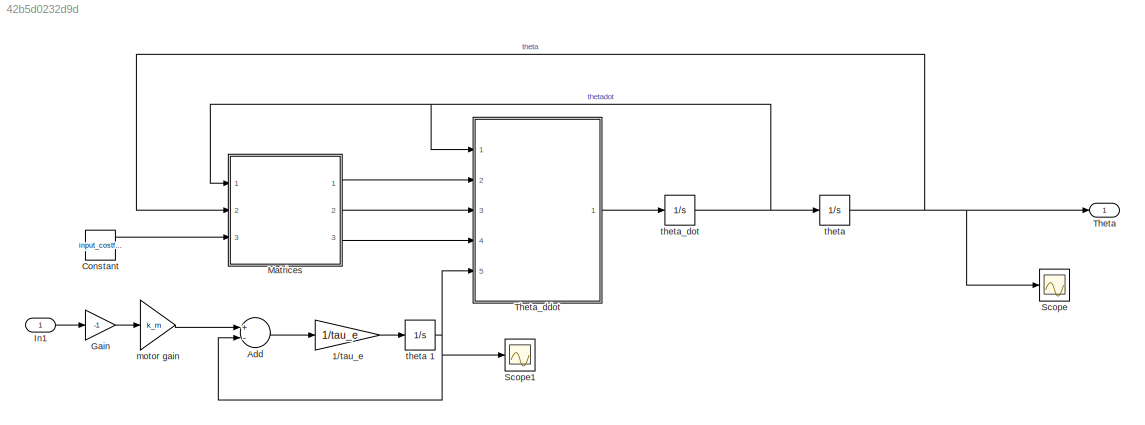
MODEL slx_42b5d0232d9d
KIND model
CONFIG AbsTol = auto
CONFIG FixedStep = auto
CONFIG MaxStep = auto
CONFIG MinStep = auto
CONFIG RelTol = 1e-3
CONFIG SampleTimeConstraint = Unconstrained
CONFIG Solver = ode45
CONFIG SolverMode = Auto
CONFIG SolverName = ode45
CONFIG StartTime = 0.0
CONFIG StopTime = 30
WORKSPACE source: external: MATLAB File  (data not in archive)
BLOCK [Gain] 1//tau_e 
  Gain = 1/tau_e
  OutDataTypeStr = Inherit: Inherit via internal rule
  ParamDataTypeStr = Inherit: Inherit via internal rule
  SaturateOnIntegerOverflow = off
BLOCK [Sum] Add
  InputSameDT = off
  Inputs = +-
  OutDataTypeStr = Inherit: Inherit via internal rule
  Ports = [2, 1]
  SaturateOnIntegerOverflow = off
BLOCK [Constant] Constant
  SampleTime = -1
  Value = input_costfun
BLOCK [Gain] Gain
  Gain = -1
  OutDataTypeStr = Inherit: Inherit via internal rule
  ParamDataTypeStr = Inherit: Inherit via internal rule
  SaturateOnIntegerOverflow = off
BLOCK [Inport] In1
  IconDisplay = Port number
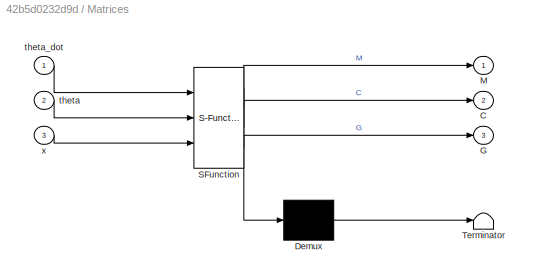
BLOCK [SubSystem] Matrices
  ErrorFcn = Stateflow.Translate.translate
  PermitHierarchicalResolution = ExplicitOnly
  Ports = [3, 3]
  RequestExecContextInheritance = off
  SFBlockType = MATLAB Function
  TreatAsAtomicUnit = on
  Variant = off
BLOCK [Demux] Matrices/ Demux 
  Outputs = 1
  Ports = [1, 1]
BLOCK [S-Function] Matrices/ SFunction 
  EnableBusSupport = on
  FunctionName = sf_sfun
  PortCounts = [3 4]
  Ports = [3, 4]
  SFunctionDeploymentMode = off
  Tag = Stateflow S-Function Pendulum_nlmodel_link2 2
BLOCK [Terminator] Matrices/ Terminator 
BLOCK [Outport] Matrices/C
  IconDisplay = Port number
  Port = 2
BLOCK [Outport] Matrices/G
  IconDisplay = Port number
  Port = 3
BLOCK [Outport] Matrices/M
  IconDisplay = Port number
BLOCK [Inport] Matrices/theta
  IconDisplay = Port number
  Port = 2
BLOCK [Inport] Matrices/theta_dot
  IconDisplay = Port number
BLOCK [Inport] Matrices/x
  IconDisplay = Port number
  Port = 3
BLOCK [Scope] Scope
  Ports = [1]
  ScopeSpecificationString = Simulink.scopes.TimeScopeBlockCfg('CurrentConfiguration', extmgr.ConfigurationSet(extmgr.Configuration('Core','General UI',true),extmgr.Configuration('Core','Source UI',true),extmgr.Configuration('Sources','WiredSimulink',true,'DataLoggingVariableName','ScopeData1'),extmgr.Configuration('Visuals','Time Domain',true,'SerializedDisplays',{struct('MinYLimReal','-0.20082','MaxYLimReal','1.80738','YLab...<+1430ch>
BLOCK [Scope] Scope1
  Ports = [1]
  ScopeSpecificationString = C++SS(StrPVP('SaveName','ScopeData1'),StrPVP('LimitDataPoints','on'),StrPVP('DataFormat','Array'),StrPVP('Decimation','1'),StrPVP('BlockParamSampleInput','off'))
BLOCK [Outport] Theta
  IconDisplay = Port number
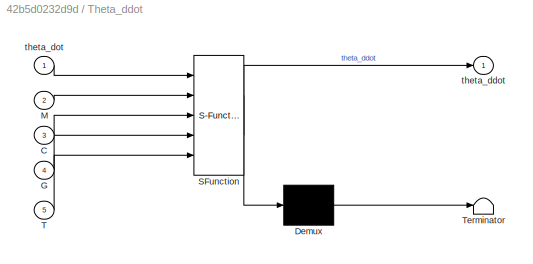
BLOCK [SubSystem] Theta_ddot 
  ErrorFcn = Stateflow.Translate.translate
  PermitHierarchicalResolution = ExplicitOnly
  Ports = [5, 1]
  RequestExecContextInheritance = off
  SFBlockType = MATLAB Function
  TreatAsAtomicUnit = on
  Variant = off
BLOCK [Demux] Theta_ddot / Demux 
  Outputs = 1
  Ports = [1, 1]
BLOCK [S-Function] Theta_ddot / SFunction 
  EnableBusSupport = on
  FunctionName = sf_sfun
  PortCounts = [5 2]
  Ports = [5, 2]
  SFunctionDeploymentMode = off
  Tag = Stateflow S-Function Pendulum_nlmodel_link2 1
BLOCK [Terminator] Theta_ddot / Terminator 
BLOCK [Inport] Theta_ddot /C
  IconDisplay = Port number
  Port = 3
BLOCK [Inport] Theta_ddot /G
  IconDisplay = Port number
  Port = 4
BLOCK [Inport] Theta_ddot /M
  IconDisplay = Port number
  Port = 2
BLOCK [Inport] Theta_ddot /T
  IconDisplay = Port number
  Port = 5
BLOCK [Outport] Theta_ddot /theta_ddot
  IconDisplay = Port number
BLOCK [Inport] Theta_ddot /theta_dot
  IconDisplay = Port number
BLOCK [Gain] motor gain 
  Gain = k_m
  OutDataTypeStr = Inherit: Inherit via internal rule
  ParamDataTypeStr = Inherit: Inherit via internal rule
  SaturateOnIntegerOverflow = off
BLOCK [Integrator] theta 
  InitialCondition = [x0(1) x0(2)]
  Ports = [1, 1]
BLOCK [Integrator] theta 1
  ContinuousStateAttributes = 'torque'
  InitialCondition = x0(5)
  Ports = [1, 1]
BLOCK [Integrator] theta_dot 
  InitialCondition = [x0(3) x0(4)]
  Ports = [1, 1]
LINE 1//tau_e :1 -> theta 1:1
LINE Add:1 -> 1//tau_e :1
LINE Constant:1 -> Matrices:3
LINE Gain:1 -> motor gain :1
LINE In1:1 -> Gain:1
LINE Matrices:1 -> Theta_ddot :2
LINE Matrices:2 -> Theta_ddot :3
LINE Matrices:3 -> Theta_ddot :4
LINE Theta_ddot :1 -> theta_dot :1
LINE motor gain :1 -> Add:1
NET theta 1:1 -> Add:2, Scope1:1, Theta_ddot :5
NET theta :1 -> Matrices:2, Scope:1, Theta:1
NET theta_dot :1 -> Matrices:1, Theta_ddot :1, theta :1
note: NET lines group one-source signal fan-out (src -> all destinations, sorted); 1:1 wires keep LINE
CHART Theta_ddot
 states=1 transitions=1
  STATE_LABEL 'eML_blk_kernel()'
  STATE_LABEL 'SCRIPT:\nfunction theta_ddot = fcn(theta_dot,M,C,G,T)\ntheta_ddot = [0;0];\n\ntheta_ddot = M\\[T;0] - M\\C*theta_dot - M\\G;\n'
CHART Matrices states=1 transitions=1
  STATE_LABEL 'eML_blk_kernel()'
  STATE_LABEL 'SCRIPT:\nfunction [M, C, G] = fcn(theta_dot, theta, x)\n\nM = zeros(2);\nC = zeros(2);\nG = [0;0];\n\nl1 = 0.1;\nm1 = 0.125;\nc1 = -0.04;\nI1 = 0.074;\nb1 = 4.8;\n\nI2 = x(1);\n% b2 = 0.0002;\nb2 = x(2);\n\n\nl2 = 0.1;\nm2 = 0.05;\nc2 = 0.06;\n% I2 = 0.00012;\n% b2 = 0.0002;\n\n\n\ng = 9.81; \n% l1 = 0.1;\n\n% m1 = 0.125;\n\n% c1 = -0.04; % Keeping it negative results in no motion at all, -0.04 or + 0.04?\n\n% I1 = 0.074;\n\n% b1 =...<+586ch>'
